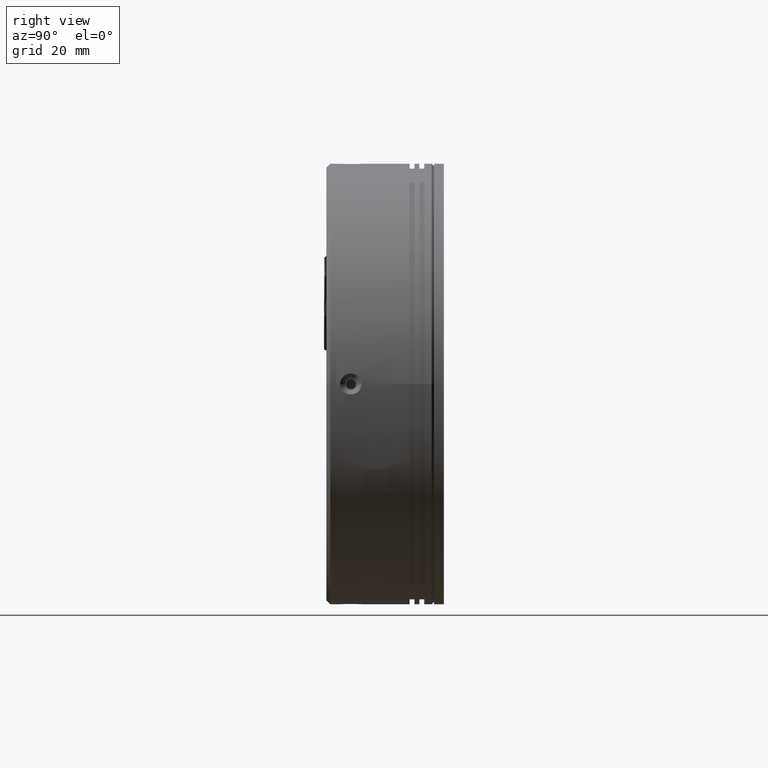
[diagram: clean part render]
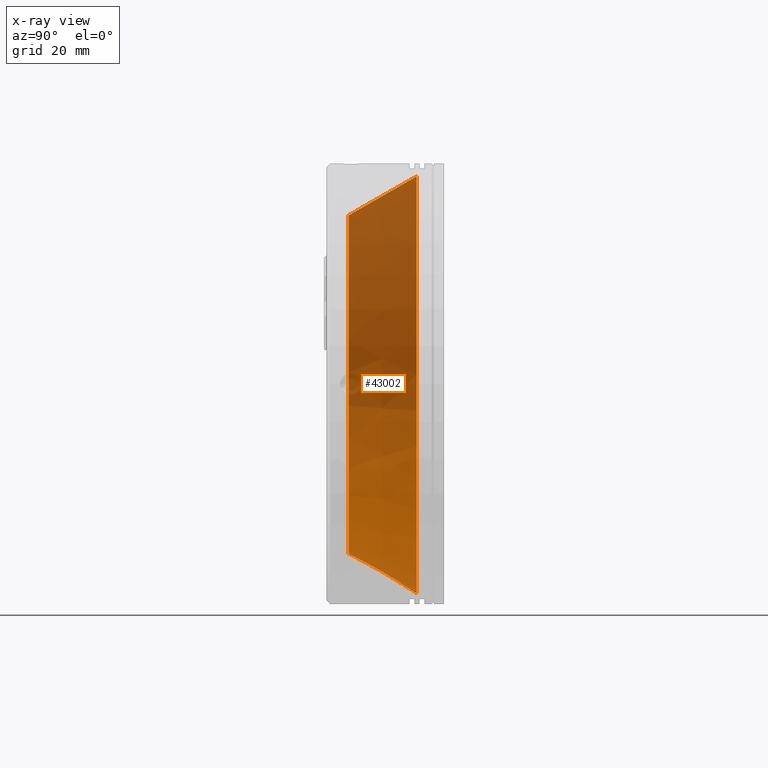
[diagram: x-ray — body ghosted, one internal face saturated and labeled with its STEP entity id]
A machine part, right view, then the same camera in x-ray: the body is ghosted and one INTERNAL B-rep face — a face not visible from any outside direction — is saturated and labeled: STEP entity #43002.
In plain terms, the highlighted conical surface has half-angle 30 deg.
Its self-contained STEP definition (entity closure, byte-faithful):
#2357 = DIRECTION ( 'NONE',  ( 0.0000000000000000000, -1.000000000000000000, 0.0000000000000000000 ) ) ;
#7196 = VECTOR ( 'NONE', #95386, 1000.000000000000100 ) ;
#9227 = DIRECTION ( 'NONE',  ( 0.0000000000000000000, -1.000000000000000000, 0.0000000000000000000 ) ) ;
#12528 = ORIENTED_EDGE ( 'NONE', *, *, #80136, .T. ) ;
#13478 = DIRECTION ( 'NONE',  ( 0.06412185556377167400, 0.8660254037844380400, -0.4958713418206983100 ) ) ;
#16868 = EDGE_CURVE ( 'NONE', #103455, #102706, #45555, .T. ) ;
#18525 = EDGE_CURVE ( 'NONE', #93327, #102706, #102086, .T. ) ;
#22190 = AXIS2_PLACEMENT_3D ( 'NONE', #124116, #95321, #66501 ) ;
#26584 = AXIS2_PLACEMENT_3D ( 'NONE', #60255, #2357, #69985 ) ;
#27729 = CARTESIAN_POINT ( 'NONE',  ( -14.10448841035362700, 23.38001079608988100, 42.38727308916474400 ) ) ;
#32548 = DIRECTION ( 'NONE',  ( 0.0000000000000000000, -1.000000000000000000, 0.0000000000000000000 ) ) ;
#35720 = CARTESIAN_POINT ( 'NONE',  ( -13.07853872133328100, 9.523604335538909300, 34.45333162003358000 ) ) ;
#36063 = ORIENTED_EDGE ( 'NONE', *, *, #64878, .F. ) ;
#39176 = CARTESIAN_POINT ( 'NONE',  ( -3.142166640412149500, 23.38001079608988100, -42.38727308916473600 ) ) ;
#39222 = EDGE_LOOP ( 'NONE', ( #12528, #83370, #113922, #92897, #36063, #117556 ) ) ;
#41337 = VERTEX_POINT ( 'NONE', #35720 ) ;
#43002 = ADVANCED_FACE ( 'NONE', ( #104415 ), #57264, .F. ) ;
#45555 = CIRCLE ( 'NONE', #72749, 42.74019237886468400 ) ;
#52114 = VERTEX_POINT ( 'NONE', #85426 ) ;
#54113 = DIRECTION ( 'NONE',  ( 0.0000000000000000000, -1.000000000000000000, 0.0000000000000000000 ) ) ;
#55230 = EDGE_CURVE ( 'NONE', #41337, #108133, #81311, .T. ) ;
#57264 = CONICAL_SURFACE ( 'NONE', #22190, 42.74019237886468400, 0.5235987755983000400 ) ;
#60255 = CARTESIAN_POINT ( 'NONE',  ( -8.623327525382890700, 23.38001079608988100, -3.306816626080788500E-015 ) ) ;
#61274 = CARTESIAN_POINT ( 'NONE',  ( -4.168116329432494100, 9.523604335538905700, -34.45333162003358000 ) ) ;
#64878 = EDGE_CURVE ( 'NONE', #108133, #103455, #91345, .T. ) ;
#66501 = DIRECTION ( 'NONE',  ( -0.1282437111275429600, -8.117527691965372500E-017, 0.9917426836413946200 ) ) ;
#67135 = CARTESIAN_POINT ( 'NONE',  ( -8.623327525382890700, 9.523604335538907500, -3.306816626080788500E-015 ) ) ;
#69985 = DIRECTION ( 'NONE',  ( 0.9917426836413946200, 0.0000000000000000000, 0.1282437111275429600 ) ) ;
#72749 = AXIS2_PLACEMENT_3D ( 'NONE', #90512, #32548, #100258 ) ;
#76841 = DIRECTION ( 'NONE',  ( 0.9917426836413946200, 0.0000000000000000000, 0.1282437111275429900 ) ) ;
#77701 = EDGE_CURVE ( 'NONE', #52114, #93327, #99438, .T. ) ;
#80136 = EDGE_CURVE ( 'NONE', #41337, #52114, #100761, .T. ) ;
#81083 = CARTESIAN_POINT ( 'NONE',  ( -3.142166640412148700, 23.38001079608988800, -42.38727308916474400 ) ) ;
#81311 = LINE ( 'NONE', #27729, #7196 ) ;
#83370 = ORIENTED_EDGE ( 'NONE', *, *, #77701, .T. ) ;
#85426 = CARTESIAN_POINT ( 'NONE',  ( -43.07665914541648500, 9.523604335538907500, -4.455211195950393100 ) ) ;
#86849 = AXIS2_PLACEMENT_3D ( 'NONE', #67135, #9227, #76841 ) ;
#90512 = CARTESIAN_POINT ( 'NONE',  ( -8.623327525382890700, 23.38001079608988100, -3.306816626080788500E-015 ) ) ;
#91345 = CIRCLE ( 'NONE', #26584, 42.74019237886468400 ) ;
#92897 = ORIENTED_EDGE ( 'NONE', *, *, #16868, .F. ) ;
#93327 = VERTEX_POINT ( 'NONE', #61274 ) ;
#93731 = AXIS2_PLACEMENT_3D ( 'NONE', #112190, #54113, #121896 ) ;
#95321 = DIRECTION ( 'NONE',  ( -5.205109381991191200E-018, 1.000000000000000000, 4.025249348881539100E-017 ) ) ;
#95386 = DIRECTION ( 'NONE',  ( -0.06412185556377160400, 0.8660254037844379300, 0.4958713418206983600 ) ) ;
#99013 = VECTOR ( 'NONE', #13478, 1000.000000000000000 ) ;
#99438 = CIRCLE ( 'NONE', #86849, 34.74019237886468400 ) ;
#100258 = DIRECTION ( 'NONE',  ( 0.9917426836413946200, 0.0000000000000000000, 0.1282437111275429600 ) ) ;
#100761 = CIRCLE ( 'NONE', #93731, 34.74019237886468400 ) ;
#102086 = LINE ( 'NONE', #81083, #99013 ) ;
#102524 = CARTESIAN_POINT ( 'NONE',  ( -51.01060061454764100, 23.38001079608988100, -5.481160884970734100 ) ) ;
#102706 = VERTEX_POINT ( 'NONE', #39176 ) ;
#103455 = VERTEX_POINT ( 'NONE', #102524 ) ;
#104415 = FACE_OUTER_BOUND ( 'NONE', #39222, .T. ) ;
#108133 = VERTEX_POINT ( 'NONE', #124254 ) ;
#112190 = CARTESIAN_POINT ( 'NONE',  ( -8.623327525382890700, 9.523604335538907500, -3.306816626080788500E-015 ) ) ;
#113922 = ORIENTED_EDGE ( 'NONE', *, *, #18525, .T. ) ;
#117556 = ORIENTED_EDGE ( 'NONE', *, *, #55230, .F. ) ;
#121896 = DIRECTION ( 'NONE',  ( 0.9917426836413946200, 0.0000000000000000000, 0.1282437111275429900 ) ) ;
#124116 = CARTESIAN_POINT ( 'NONE',  ( -8.623327525382890700, 23.38001079608988400, -3.306816626080788500E-015 ) ) ;
#124254 = CARTESIAN_POINT ( 'NONE',  ( -14.10448841035362700, 23.38001079608988100, 42.38727308916474400 ) ) ;